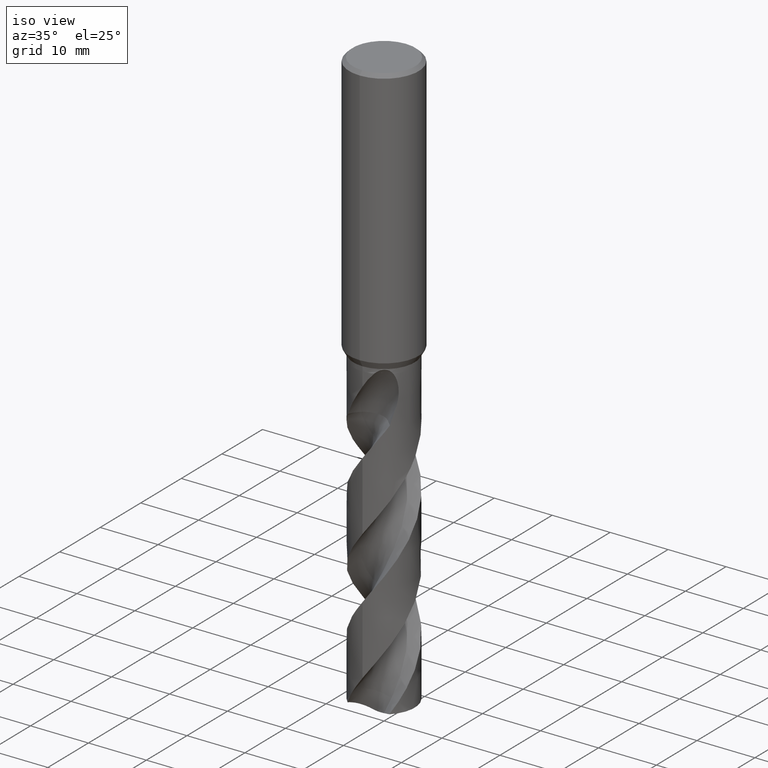
[diagram: clean part render]
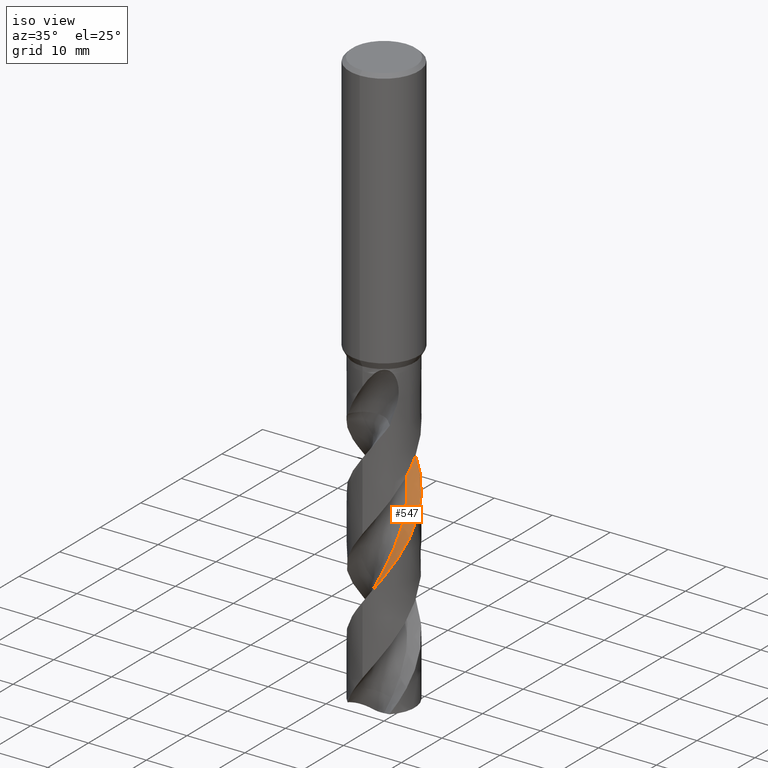
[diagram: same view with one face highlighted and labeled with its STEP entity id]
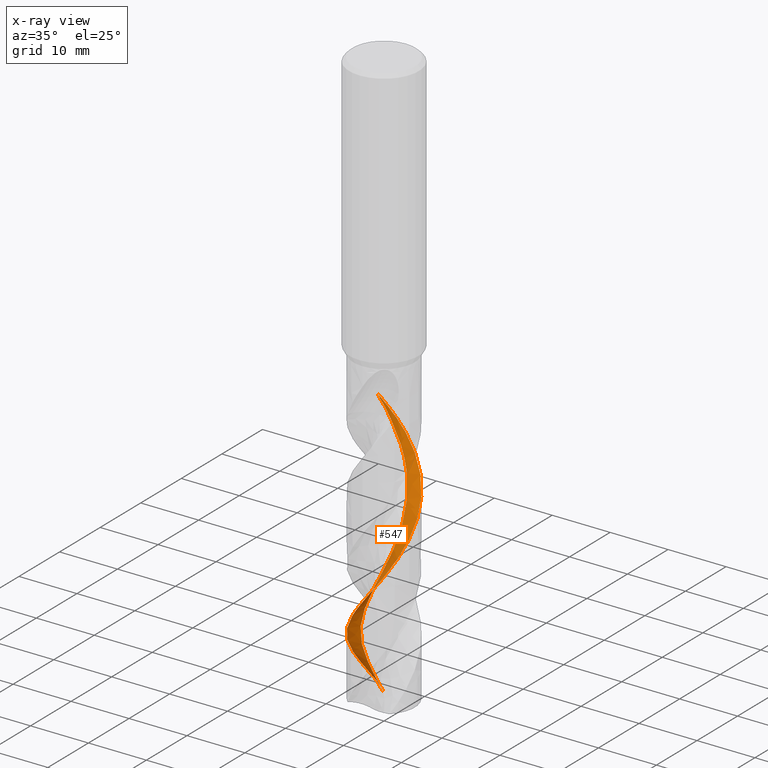
[diagram: x-ray of the same camera — body ghosted, the highlighted face saturated]
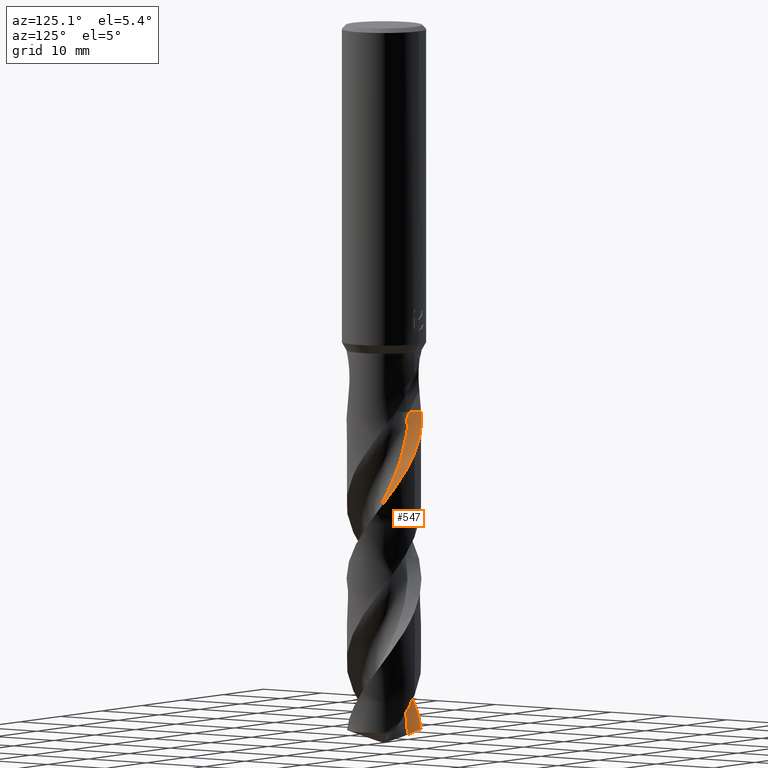
[diagram: same view with one face highlighted and labeled with its STEP entity id]
A machine part, iso view. The second image highlights one B-rep face of the part: STEP entity #547.
The next image is the same camera in x-ray: the body ghosted, the highlighted face saturated — about 0% of this face is hidden behind the body in this view.
A second angle (auxiliary view) of the same face is appended — the face is thin or edge-on in the first view.
In plain terms, the highlighted face is a freeform B-spline surface patch.
Its self-contained STEP definition (entity closure, byte-faithful):
#293=EDGE_CURVE('',#715,#335,#786,.T.);
#335=VERTEX_POINT('',#834);
#399=EDGE_CURVE('',#335,#473,#902,.T.);
#407=EDGE_CURVE('',#567,#423,#912,.T.);
#423=VERTEX_POINT('',#930);
#473=VERTEX_POINT('',#987);
#547=ADVANCED_FACE('',(#1064),#1065,.F.);
#567=VERTEX_POINT('',#1088);
#597=EDGE_CURVE('',#677,#567,#1120,.T.);
#669=EDGE_CURVE('',#715,#423,#1199,.T.);
#677=VERTEX_POINT('',#1207);
#703=EDGE_CURVE('',#473,#677,#1236,.T.);
#715=VERTEX_POINT('',#1248);
#786=LINE('',#1343,#1344);
#834=CARTESIAN_POINT('',(-3.6838498797612,3.81029529409031,-55.0186));
#902=B_SPLINE_CURVE_WITH_KNOTS('',3,(#1714,#1715,#1716,#1717,#1718,#1719,#1720,#1721,#1722,#1723,#1724,#1725,#1726,#1727,#1728,#1729,#1730,#1731,#1732,#1733,#1734,#1735,#1736,#1737,#1738,#1739,#1740,#1741,#1742,#1743,#1744,#1745,#1746,#1747,#1748,#1749,#1750,#1751,#1752,#1753,#1754,#1755,#1756,#1757,#1758,#1759,#1760,#1761,#1762,#1763,#1764,#1765,#1766,#1767,#1768,#1769,#1770,#1771,#1772,#1773,#1774,#1775,#1776,#1777,#1778,#1779,#1780,#1781,#1782,#1783,#1784,#1785,#1786,#1787,#1788,#1789,#1790,#1791,#1792,#1793,#1794,#1795,#1796,#1797,#1798,#1799,#1800,#1801,#1802,#1803,#1804,#1805,#1806,#1807),.UNSPECIFIED.,.F.,.F.,(4,2,2,2,2,2,2,2,2,2,2,2,2,2,2,2,2,2,2,2,2,2,2,2,2,2,2,2,2,2,2,2,2,2,2,2,2,2,2,2,2,2,2,2,2,2,4),(0.0,0.218040524987883,0.35169599727516,0.434204400201139,1.00837514030403,1.21070875702329,1.34069300444381,1.46311228601084,1.62771213083168,1.81087175589756,1.83459754694304,2.53011548671726,2.99050764217543,3.45321075083764,3.9479219089216,5.32326142600038,5.64325978559413,8.14920160785972,8.87782816751655,9.59953586343091,10.3276718494385,11.773052117009,14.349164963283,14.853316710442,16.6631985927309,19.5861346502642,20.8142374699089,23.7009847866445,24.4298833891527,27.321641904442,28.7783964446072,29.9223633900401,32.4186354075135,33.9202593819723,36.5243900367498,36.7648643725234,38.5507802371338,41.474677735265,43.9191805610887,43.977674276772,47.3019317307863,47.8345735931762,49.7431906027992,50.5449608981147,51.9399928077037,54.0450221288698,56.1608947485784),.UNSPECIFIED.);
#912=B_SPLINE_CURVE_WITH_KNOTS('',3,(#1821,#1822,#1823,#1824,#1825,#1826,#1827,#1828),.UNSPECIFIED.,.F.,.F.,(4,2,2,4),(0.0,2.35692417237146,3.51239813350228,4.65911612024447),.UNSPECIFIED.);
#930=CARTESIAN_POINT('',(-1.92643973439241,2.73193693311974,-100.783301920864));
#987=CARTESIAN_POINT('',(6.3105196094406E-011,5.29992549214172,-60.52892376531));
#1064=FACE_OUTER_BOUND('',#3326,.T.);
#1065=B_SPLINE_SURFACE_WITH_KNOTS('',3,3,((#3327,#3328,#3329,#3330,#3331,#3332,#3333,#3334,#3335,#3336,#3337,#3338,#3339,#3340,#3341,#3342,#3343,#3344,#3345,#3346,#3347,#3348,#3349,#3350,#3351,#3352,#3353,#3354,#3355,#3356,#3357,#3358,#3359,#3360,#3361,#3362,#3363,#3364,#3365,#3366,#3367,#3368,#3369,#3370,#3371,#3372,#3373,#3374,#3375,#3376,#3377,#3378,#3379,#3380,#3381,#3382),(#3383,#3384,#3385,#3386,#3387,#3388,#3389,#3390,#3391,#3392,#3393,#3394,#3395,#3396,#3397,#3398,#3399,#3400,#3401,#3402,#3403,#3404,#3405,#3406,#3407,#3408,#3409,#3410,#3411,#3412,#3413,#3414,#3415,#3416,#3417,#3418,#3419,#3420,#3421,#3422,#3423,#3424,#3425,#3426,#3427,#3428,#3429,#3430,#3431,#3432,#3433,#3434,#3435,#3436,#3437,#3438),(#3439,#3440,#3441,#3442,#3443,#3444,#3445,#3446,#3447,#3448,#3449,#3450,#3451,#3452,#3453,#3454,#3455,#3456,#3457,#3458,#3459,#3460,#3461,#3462,#3463,#3464,#3465,#3466,#3467,#3468,#3469,#3470,#3471,#3472,#3473,#3474,#3475,#3476,#3477,#3478,#3479,#3480,#3481,#3482,#3483,#3484,#3485,#3486,#3487,#3488,#3489,#3490,#3491,#3492,#3493,#3494),(#3495,#3496,#3497,#3498,#3499,#3500,#3501,#3502,#3503,#3504,#3505,#3506,#3507,#3508,#3509,#3510,#3511,#3512,#3513,#3514,#3515,#3516,#3517,#3518,#3519,#3520,#3521,#3522,#3523,#3524,#3525,#3526,#3527,#3528,#3529,#3530,#3531,#3532,#3533,#3534,#3535,#3536,#3537,#3538,#3539,#3540,#3541,#3542,#3543,#3544,#3545,#3546,#3547,#3548,#3549,#3550)),.UNSPECIFIED.,.F.,.F.,.F.,(4,4),(4,1,2,1,2,2,2,2,2,1,2,1,2,1,2,1,2,1,2,1,2,1,2,1,2,1,2,1,2,1,2,1,2,2,4),(2.31063811747395E-016,7.06666667),(0.0,1.05697191436646,2.11394382873293,3.17091574309939,4.22788765746586,6.34183148619878,8.45577531493171,10.5697191436646,12.6836629723976,14.7976068011305,16.9115506298634,19.0254944585963,21.1394382873293,23.2533821160622,25.3673259447951,27.4812697735281,29.595213602261,31.7091574309939,33.8231012597268,35.9370450884598,38.0509889171927,40.1649327459256,42.2788765746586,44.3928204033915,46.5067642321244,48.6207080608573,50.7346518895903,52.8485957183232,54.9625395470561,57.076483375789,59.190427204522,61.3043710332549,63.4183148619878,65.5322586907208,67.6462025194537),.UNSPECIFIED.);
#1088=CARTESIAN_POINT('',(-3.6322407459231,3.85964080759545,-100.070957758389));
#1120=B_SPLINE_CURVE_WITH_KNOTS('',3,(#4463,#4464,#4465,#4466,#4467,#4468,#4469,#4470,#4471,#4472,#4473,#4474,#4475,#4476,#4477,#4478,#4479,#4480,#4481,#4482,#4483,#4484,#4485,#4486,#4487,#4488,#4489,#4490,#4491,#4492,#4493,#4494,#4495,#4496,#4497,#4498,#4499,#4500,#4501,#4502,#4503,#4504,#4505,#4506,#4507,#4508,#4509,#4510,#4511,#4512,#4513,#4514,#4515,#4516,#4517,#4518,#4519,#4520,#4521,#4522,#4523,#4524,#4525,#4526,#4527,#4528,#4529,#4530,#4531,#4532,#4533,#4534,#4535,#4536,#4537,#4538,#4539,#4540,#4541,#4542,#4543,#4544,#4545,#4546,#4547,#4548,#4549,#4550,#4551,#4552,#4553,#4554,#4555,#4556),.UNSPECIFIED.,.F.,.F.,(4,2,2,2,2,2,2,2,2,2,2,2,2,2,2,2,2,2,2,2,2,2,2,2,2,2,2,2,2,2,2,2,2,2,2,2,2,2,2,2,2,2,2,2,2,2,4),(0.0,0.218040524987883,0.35169599727516,0.434204400201139,1.00837514030403,1.21070875702329,1.34069300444381,1.46311228601084,1.62771213083168,1.81087175589756,1.83459754694304,2.53011548671726,2.99050764217543,3.45321075083764,3.9479219089216,5.32326142600038,5.64325978559413,8.14920160785972,8.87782816751655,9.59953586343091,10.3276718494385,11.773052117009,14.349164963283,14.853316710442,16.6631985927309,19.5861346502642,20.8142374699089,23.7009847866445,24.4298833891527,27.321641904442,28.7783964446072,29.9223633900401,32.4186354075135,33.9202593819723,36.5243900367498,36.7648643725234,38.5507802371338,41.474677735265,43.9191805610887,43.977674276772,47.3019317307863,47.8345735931762,49.7431906027992,50.5449608981147,51.9399928077037,54.0450221288698,56.1608947485784),.UNSPECIFIED.);
#1199=B_SPLINE_CURVE_WITH_KNOTS('',3,(#4809,#4810,#4811,#4812,#4813,#4814,#4815,#4816,#4817,#4818,#4819,#4820,#4821,#4822,#4823,#4824,#4825,#4826,#4827,#4828,#4829,#4830,#4831,#4832,#4833,#4834,#4835,#4836,#4837,#4838,#4839,#4840,#4841,#4842,#4843,#4844,#4845,#4846,#4847,#4848,#4849,#4850,#4851,#4852,#4853,#4854,#4855,#4856,#4857,#4858,#4859,#4860,#4861,#4862,#4863,#4864),.UNSPECIFIED.,.F.,.F.,(4,1,2,1,2,2,2,2,2,1,2,1,2,1,2,1,2,1,2,1,2,1,2,1,2,1,2,1,2,1,2,1,2,2,4),(0.0,1.05697191436646,2.11394382873293,3.17091574309939,4.22788765746586,6.34183148619878,8.45577531493171,10.5697191436646,12.6836629723976,14.7976068011305,16.9115506298634,19.0254944585963,21.1394382873293,23.2533821160622,25.3673259447951,27.4812697735281,29.595213602261,31.7091574309939,33.8231012597268,35.9370450884598,38.0509889171927,40.1649327459256,42.2788765746586,44.3928204033915,46.5067642321244,48.6207080608573,50.7346518895903,52.8485957183232,54.9625395470561,57.076483375789,59.190427204522,61.3043710332549,63.4183148619878,65.5322586907208,67.6462025194537),.UNSPECIFIED.);
#1207=CARTESIAN_POINT('',(9.21365341567189E-013,-5.29996783547603,-83.0009368325365));
#1236=B_SPLINE_CURVE_WITH_KNOTS('',3,(#5022,#5023,#5024,#5025,#5026,#5027,#5028,#5029,#5030,#5031,#5032,#5033,#5034,#5035,#5036,#5037,#5038,#5039,#5040,#5041,#5042,#5043,#5044,#5045,#5046,#5047,#5048,#5049,#5050,#5051,#5052,#5053,#5054,#5055,#5056,#5057,#5058,#5059,#5060,#5061,#5062,#5063,#5064,#5065,#5066,#5067,#5068,#5069,#5070,#5071,#5072,#5073,#5074,#5075,#5076,#5077,#5078,#5079,#5080,#5081,#5082,#5083,#5084,#5085,#5086,#5087,#5088,#5089,#5090,#5091,#5092,#5093,#5094,#5095,#5096,#5097,#5098,#5099,#5100,#5101,#5102,#5103,#5104,#5105,#5106,#5107,#5108,#5109,#5110,#5111,#5112,#5113,#5114,#5115),.UNSPECIFIED.,.F.,.F.,(4,2,2,2,2,2,2,2,2,2,2,2,2,2,2,2,2,2,2,2,2,2,2,2,2,2,2,2,2,2,2,2,2,2,2,2,2,2,2,2,2,2,2,2,2,2,4),(0.0,0.218040524987883,0.35169599727516,0.434204400201139,1.00837514030403,1.21070875702329,1.34069300444381,1.46311228601084,1.62771213083168,1.81087175589756,1.83459754694304,2.53011548671726,2.99050764217543,3.45321075083764,3.9479219089216,5.32326142600038,5.64325978559413,8.14920160785972,8.87782816751655,9.59953586343091,10.3276718494385,11.773052117009,14.349164963283,14.853316710442,16.6631985927309,19.5861346502642,20.8142374699089,23.7009847866445,24.4298833891527,27.321641904442,28.7783964446072,29.9223633900401,32.4186354075135,33.9202593819723,36.5243900367498,36.7648643725234,38.5507802371338,41.474677735265,43.9191805610887,43.977674276772,47.3019317307863,47.8345735931762,49.7431906027992,50.5449608981147,51.9399928077037,54.0450221288698,56.1608947485784),.UNSPECIFIED.);
#1248=CARTESIAN_POINT('',(-2.49844395776474,2.62488937223527,-55.0186));
#1343=CARTESIAN_POINT('',(-2.49844395783545,2.62488937216456,-55.0186));
#1344=VECTOR('',#5265,1.0);
#1714=CARTESIAN_POINT('',(-3.6838498797612,3.81029529409031,-55.0186));
#1715=CARTESIAN_POINT('',(-3.65412128161096,3.83903749939567,-55.0783704268317));
#1716=CARTESIAN_POINT('',(-3.62397815595265,3.86750863752062,-55.1380930447628));
#1717=CARTESIAN_POINT('',(-3.57454685157391,3.91310265667126,-55.2342899991591));
#1718=CARTESIAN_POINT('',(-3.55559450450037,3.93033260391565,-55.2707752403739));
#1719=CARTESIAN_POINT('',(-3.52461328984697,3.95808787265097,-55.3297268343548));
#1720=CARTESIAN_POINT('',(-3.51271935000354,3.96864761089923,-55.3521980042881));
#1721=CARTESIAN_POINT('',(-3.41743516534584,4.05247584359199,-55.5309011595253));
#1722=CARTESIAN_POINT('',(-3.33203894740819,4.12306464516564,-55.6829795631752));
#1723=CARTESIAN_POINT('',(-3.20989975733148,4.21749682485048,-55.8902838914724));
#1724=CARTESIAN_POINT('',(-3.17769957871174,4.24181425278105,-55.9440624691203));
#1725=CARTESIAN_POINT('',(-3.12409639430935,4.28133398324858,-56.0323460378424));
#1726=CARTESIAN_POINT('',(-3.10298309488847,4.29666155481108,-56.0668121668238));
#1727=CARTESIAN_POINT('',(-3.06168119046604,4.32618041516466,-56.1337157109812));
#1728=CARTESIAN_POINT('',(-3.04153043628231,4.34037147393925,-56.1661218487548));
#1729=CARTESIAN_POINT('',(-2.99399957362023,4.37335018520966,-56.2420968395532));
#1730=CARTESIAN_POINT('',(-2.96655602767485,4.3920123701327,-56.2856080477091));
#1731=CARTESIAN_POINT('',(-2.90819517354403,4.430901994774,-56.3776029938153));
#1732=CARTESIAN_POINT('',(-2.87728438217866,4.45103581388676,-56.4260166041025));
#1733=CARTESIAN_POINT('',(-2.84218492170503,4.47338093722552,-56.4808129547641));
#1734=CARTESIAN_POINT('',(-2.83819334306826,4.4759145333421,-56.4870425222275));
#1735=CARTESIAN_POINT('',(-2.71569382211619,4.5534374565138,-56.6782162453421));
#1736=CARTESIAN_POINT('',(-2.59516272991848,4.62312617931698,-56.8655560712037));
#1737=CARTESIAN_POINT('',(-2.39240107936697,4.73010548051938,-57.1761371789638));
#1738=CARTESIAN_POINT('',(-2.31063786358101,4.77057676298781,-57.3002061532725));
#1739=CARTESIAN_POINT('',(-2.14485353944083,4.84738504977752,-57.5486483216884));
#1740=CARTESIAN_POINT('',(-2.06064628979083,4.88378221441841,-57.6732864657397));
#1741=CARTESIAN_POINT('',(-1.88426401513503,4.95462955247291,-57.9306362100101));
#1742=CARTESIAN_POINT('',(-1.79232955400505,4.98862423299845,-58.0626313024003));
#1743=CARTESIAN_POINT('',(-1.44048923722168,5.10771884445575,-58.5628706349024));
#1744=CARTESIAN_POINT('',(-1.17555877364497,5.17509760658795,-58.9288569630509));
#1745=CARTESIAN_POINT('',(-0.844300195092571,5.23262571598332,-59.3828031963343));
#1746=CARTESIAN_POINT('',(-0.781633894941649,5.24235167958048,-59.4685464628528));
#1747=CARTESIAN_POINT('',(-0.227325019856081,5.31823924716515,-60.2251418522728));
#1748=CARTESIAN_POINT('',(0.271733629390173,5.31623242525901,-60.8917187358792));
#1749=CARTESIAN_POINT('',(0.906472846695976,5.22383183771315,-61.7571081947109));
#1750=CARTESIAN_POINT('',(1.04851992231513,5.19718262977385,-61.9519832722461));
#1751=CARTESIAN_POINT('',(1.32869494146467,5.13266835925989,-62.3400867215585));
#1752=CARTESIAN_POINT('',(1.46675079083213,5.09493449280441,-62.5332089844875));
#1753=CARTESIAN_POINT('',(1.74067574923173,5.00800731280011,-62.9211946825181));
#1754=CARTESIAN_POINT('',(1.87643044920925,4.95874155009098,-63.1159470000314));
#1755=CARTESIAN_POINT('',(2.27522793968092,4.79528487544571,-63.6974697692906));
#1756=CARTESIAN_POINT('',(2.53106019871061,4.66530045664442,-64.0833235783013));
#1757=CARTESIAN_POINT('',(3.20990144939106,4.24810066562416,-65.1598096672133));
#1758=CARTESIAN_POINT('',(3.60416003036703,3.91925134536289,-65.8452126356443));
#1759=CARTESIAN_POINT('',(4.01218227494825,3.46435123371981,-66.6690986383288));
#1760=CARTESIAN_POINT('',(4.07681309500062,3.3880556524897,-66.8038738951446));
#1761=CARTESIAN_POINT('',(4.36333715355754,3.02975130017823,-67.423171454676));
#1762=CARTESIAN_POINT('',(4.55844049975234,2.72741365475783,-67.9074222818332));
#1763=CARTESIAN_POINT('',(4.98479558676873,1.8913353249495,-69.1742165232851));
#1764=CARTESIAN_POINT('',(5.1615618004305,1.33538377830307,-69.9498884829854));
#1765=CARTESIAN_POINT('',(5.27986300243588,0.521255604852909,-71.0612701553529));
#1766=CARTESIAN_POINT('',(5.29824752451176,0.278143870420483,-71.3896327412368));
#1767=CARTESIAN_POINT('',(5.30356403497331,-0.538195169406197,-72.4906953358548));
#1768=CARTESIAN_POINT('',(5.21443232481526,-1.10756182636354,-73.2586521365238));
#1769=CARTESIAN_POINT('',(4.99108749797252,-1.78868985276479,-74.2265548547194));
#1770=CARTESIAN_POINT('',(4.94044981592061,-1.92415028717836,-74.4215547461009));
#1771=CARTESIAN_POINT('',(4.66160958663798,-2.58612279742515,-75.3904266012673));
#1772=CARTESIAN_POINT('',(4.3545855823522,-3.07502396677161,-76.1595142672544));
#1773=CARTESIAN_POINT('',(3.78445259131558,-3.72167587675489,-77.3236520867618));
#1774=CARTESIAN_POINT('',(3.57597632360671,-3.92243880155092,-77.7126658625158));
#1775=CARTESIAN_POINT('',(3.17619078925733,-4.24887284624929,-78.4084767976948));
#1776=CARTESIAN_POINT('',(2.99141958616696,-4.3809126662265,-78.7141242220756));
#1777=CARTESIAN_POINT('',(2.37870606133381,-4.76194950609144,-79.6888478096639));
#1778=CARTESIAN_POINT('',(1.92369561171159,-4.96331385514733,-80.354278035046));
#1779=CARTESIAN_POINT('',(1.16033921447257,-5.17996819964347,-81.4240322167886));
#1780=CARTESIAN_POINT('',(0.867473733846598,-5.23695536853886,-81.8252652589077));
#1781=CARTESIAN_POINT('',(0.0584695308696583,-5.32471891825473,-82.9247713964071));
#1782=CARTESIAN_POINT('',(-0.46035451725619,-5.30516578431025,-83.6175531238152));
#1783=CARTESIAN_POINT('',(-1.01532903220524,-5.20202562997207,-84.3787142318914));
#1784=CARTESIAN_POINT('',(-1.0621100532062,-5.19267616451496,-84.4430476939091));
#1785=CARTESIAN_POINT('',(-1.45519826705919,-5.10858202380539,-84.9854916685916));
#1786=CARTESIAN_POINT('',(-1.79336351151007,-4.999905507549,-85.4635526459709));
#1787=CARTESIAN_POINT('',(-2.64976505327986,-4.62653970094231,-86.7246752570066));
#1788=CARTESIAN_POINT('',(-3.13965573865936,-4.309096114765,-87.500701550934));
#1789=CARTESIAN_POINT('',(-3.92658548156943,-3.59256956445525,-88.9385748603525));
#1790=CARTESIAN_POINT('',(-4.23866346922455,-3.21852207556811,-89.5891042508935));
#1791=CARTESIAN_POINT('',(-4.50175639816404,-2.79716429955417,-90.2589888396923));
#1792=CARTESIAN_POINT('',(-4.50787224768002,-2.78729741873268,-90.2746441815341));
#1793=CARTESIAN_POINT('',(-4.8596903902046,-2.215512063793,-91.1801767629072));
#1794=CARTESIAN_POINT('',(-5.09768143767724,-1.59351683243103,-92.0654016145258));
#1795=CARTESIAN_POINT('',(-5.23409431898871,-0.839825045274235,-93.0980900807639));
#1796=CARTESIAN_POINT('',(-5.24980557853572,-0.735241943160905,-93.2406205820733));
#1797=CARTESIAN_POINT('',(-5.30742681494894,-0.254154574365361,-93.8946101309585));
#1798=CARTESIAN_POINT('',(-5.31203115248227,0.125836721371992,-94.4055294874262));
#1799=CARTESIAN_POINT('',(-5.26094610985322,0.66158297071652,-95.1316075716188));
#1800=CARTESIAN_POINT('',(-5.23869758121612,0.819344383616303,-95.3462003732204));
#1801=CARTESIAN_POINT('',(-5.15833664824134,1.24831532301478,-95.9345155544439));
#1802=CARTESIAN_POINT('',(-5.08606657087964,1.51605554185304,-96.3072294732073));
#1803=CARTESIAN_POINT('',(-4.85332223192194,2.17015137477586,-97.2455676199351));
#1804=CARTESIAN_POINT('',(-4.66723177878282,2.5459282880948,-97.8085869247788));
#1805=CARTESIAN_POINT('',(-4.20907034161767,3.24813157810845,-98.9394473828054));
#1806=CARTESIAN_POINT('',(-3.93833555694997,3.57157884493713,-99.5040533227798));
#1807=CARTESIAN_POINT('',(-3.63224074592311,3.85964080759543,-100.070957758389));
#1821=CARTESIAN_POINT('',(-5.81383459137618,4.73067937447868,-99.2719222995232));
#1822=CARTESIAN_POINT('',(-5.0966174349644,4.52851823604252,-99.5208456202025));
#1823=CARTESIAN_POINT('',(-4.40147117975703,4.25671956387159,-99.7731145686999));
#1824=CARTESIAN_POINT('',(-3.41750805425349,3.74980501739249,-100.153904132973));
#1825=CARTESIAN_POINT('',(-3.10261397134985,3.56682589169144,-100.279803215787));
#1826=CARTESIAN_POINT('',(-2.49592414707923,3.17059685201907,-100.53184051643));
#1827=CARTESIAN_POINT('',(-2.20512220648295,2.95819958724898,-100.657545257233));
#1828=CARTESIAN_POINT('',(-1.92643973446543,2.73193693305451,-100.783301920868));
#3326=EDGE_LOOP('',(#5593,#5594,#5595,#5596,#5597,#5598));
#3327=CARTESIAN_POINT('',(-2.49844395783545,2.62488937216456,-55.0186));
#3328=CARTESIAN_POINT('',(-2.24909412560232,2.61260812428297,-55.2629746954904));
#3329=CARTESIAN_POINT('',(-1.85197539752587,2.63855177385447,-55.7495123488136));
#3330=CARTESIAN_POINT('',(-1.65737290749432,2.75698953642696,-56.2356067189668));
#3331=CARTESIAN_POINT('',(-1.54716909616829,2.93395254404715,-56.7281457115416));
#3332=CARTESIAN_POINT('',(-1.39410674556367,3.08169337270698,-57.2216184562587));
#3333=CARTESIAN_POINT('',(-1.17713443232074,3.16259789349587,-57.7120377860694));
#3334=CARTESIAN_POINT('',(-0.821342101647347,3.23587051557121,-58.4426566049961));
#3335=CARTESIAN_POINT('',(-0.593323598996969,3.27650315669591,-58.9303939849536));
#3336=CARTESIAN_POINT('',(-0.150399726755623,3.34626563953682,-59.9116290635929));
#3337=CARTESIAN_POINT('',(0.080349490235978,3.34770650573517,-60.4017366809573));
#3338=CARTESIAN_POINT('',(0.536037150415574,3.30317668903117,-61.3796432719813));
#3339=CARTESIAN_POINT('',(0.761773095596525,3.2556443264513,-61.8688991221384));
#3340=CARTESIAN_POINT('',(1.19812863064167,3.12418302266454,-62.8482595001352));
#3341=CARTESIAN_POINT('',(1.40952574908957,3.03300429818257,-63.3377062797921));
#3342=CARTESIAN_POINT('',(1.81026422216882,2.82017229131363,-64.3164743457747));
#3343=CARTESIAN_POINT('',(2.18678085487371,2.55102789137899,-65.2956922261115));
#3344=CARTESIAN_POINT('',(2.50060945518253,2.21407861713422,-66.2740491439934));
#3345=CARTESIAN_POINT('',(2.78498530440847,1.86250987763143,-67.253068966018));
#3346=CARTESIAN_POINT('',(3.02417813594791,1.46723618420797,-68.2325770719528));
#3347=CARTESIAN_POINT('',(3.17726727300067,1.03266637191089,-69.211009889743));
#3348=CARTESIAN_POINT('',(3.29700803706295,0.596235146304928,-70.1898897171669));
#3349=CARTESIAN_POINT('',(3.35820065261483,0.138152896046186,-71.1692787629735));
#3350=CARTESIAN_POINT('',(3.3252448332268,-0.321315977930028,-72.1476951131156));
#3351=CARTESIAN_POINT('',(3.26098907800257,-0.769217325861865,-73.1266257377308));
#3352=CARTESIAN_POINT('',(3.13430357539791,-1.21365487509881,-74.1060524984935));
#3353=CARTESIAN_POINT('',(2.92065748871978,-1.62179467895812,-75.0844716376792));
#3354=CARTESIAN_POINT('',(2.68296332723709,-2.0068320981055,-76.0633875885929));
#3355=CARTESIAN_POINT('',(2.38943128196172,-2.3637756776798,-77.0428045483006));
#3356=CARTESIAN_POINT('',(2.03065269284733,-2.65273098821297,-78.0212236318041));
#3357=CARTESIAN_POINT('',(1.65903000684998,-2.91089782265987,-79.0001432910726));
#3358=CARTESIAN_POINT('',(1.24742102214934,-3.12101873463454,-79.9795625544364));
#3359=CARTESIAN_POINT('',(0.803128161938752,-3.24276411221196,-80.9579817916448));
#3360=CARTESIAN_POINT('',(0.359350228112736,-3.33115824093725,-81.9369010945775));
#3361=CARTESIAN_POINT('',(-0.101916691884659,-3.35953739771709,-82.9163197382685));
#3362=CARTESIAN_POINT('',(-0.557879733343997,-3.29383656858783,-83.8947377001453));
#3363=CARTESIAN_POINT('',(-1.00005879498875,-3.19776151186963,-84.8736554194694));
#3364=CARTESIAN_POINT('',(-1.43431878514513,-3.03968477813327,-85.8530751453767));
#3365=CARTESIAN_POINT('',(-1.82616841109774,-2.79746152666559,-86.8314981558419));
#3366=CARTESIAN_POINT('',(-2.19325595624842,-2.53288127891702,-87.8104218176662));
#3367=CARTESIAN_POINT('',(-2.52833339157441,-2.21460219890493,-88.7898361534051));
#3368=CARTESIAN_POINT('',(-2.7909482749106,-1.83613058463386,-89.7682394548011));
#3369=CARTESIAN_POINT('',(-3.02195907666686,-1.44707714002392,-90.7471420923674));
#3370=CARTESIAN_POINT('',(-3.20217894455262,-1.02154484853793,-91.7265780615224));
#3371=CARTESIAN_POINT('',(-3.29178280973746,-0.569593512362207,-92.7050442122957));
#3372=CARTESIAN_POINT('',(-3.34804220877312,-0.120483189309063,-93.6840029843786));
#3373=CARTESIAN_POINT('',(-3.3434036697101,0.341641349322628,-94.6633525660449));
#3374=CARTESIAN_POINT('',(-3.24604001892256,0.791540080448149,-95.6416511674214));
#3375=CARTESIAN_POINT('',(-3.11974269554969,1.22555923582651,-96.6205161839066));
#3376=CARTESIAN_POINT('',(-2.93086695738059,1.64748739964883,-97.6001928707425));
#3377=CARTESIAN_POINT('',(-2.65831045897395,2.02064324800837,-98.5788888566835));
#3378=CARTESIAN_POINT('',(-2.36441366145388,2.3668694188022,-99.5577838118779));
#3379=CARTESIAN_POINT('',(-2.19635926627573,2.52330707134756,-100.046969837296));
#3380=CARTESIAN_POINT('',(-1.8406939224426,2.80322102805865,-101.024877174675));
#3381=CARTESIAN_POINT('',(-1.63708311257554,2.91792888996719,-101.514309898947));
#3382=CARTESIAN_POINT('',(-1.4200457881462,3.00680205078309,-102.003220679977));
#3383=CARTESIAN_POINT('',(-4.16407326539367,4.2905186797437,-55.0185999999974));
#3384=CARTESIAN_POINT('',(-3.91330323201493,4.27965763300772,-55.2630159555486));
#3385=CARTESIAN_POINT('',(-3.47868275655495,4.34425688204037,-55.7473292134789));
#3386=CARTESIAN_POINT('',(-3.1683410493458,4.56702652175723,-56.2304401957089));
#3387=CARTESIAN_POINT('',(-2.89413706534904,4.86913971530416,-56.725242281426));
#3388=CARTESIAN_POINT('',(-2.58191272877965,5.12145748242672,-57.221866045585));
#3389=CARTESIAN_POINT('',(-2.22132220034227,5.27537877278048,-57.7131309493974));
#3390=CARTESIAN_POINT('',(-1.66254164845184,5.44112265438577,-58.4409954243106));
#3391=CARTESIAN_POINT('',(-1.28606152549619,5.53397271858731,-58.9273371758001));
#3392=CARTESIAN_POINT('',(-0.520512651679534,5.67844720202789,-59.910379367705));
#3393=CARTESIAN_POINT('',(-0.129177328794681,5.69942624767659,-60.4010087825051));
#3394=CARTESIAN_POINT('',(0.647949460949507,5.6615561254296,-61.378121647161));
#3395=CARTESIAN_POINT('',(1.03378224035344,5.60102432318144,-61.8672141910847));
#3396=CARTESIAN_POINT('',(1.78811953668926,5.4103810182014,-62.8469218980793));
#3397=CARTESIAN_POINT('',(2.15428574415139,5.27365096863016,-63.3363594428647));
#3398=CARTESIAN_POINT('',(2.85628435760043,4.93700958960094,-64.3150089806155));
#3399=CARTESIAN_POINT('',(3.51532623551665,4.51563990703027,-65.294463700049));
#3400=CARTESIAN_POINT('',(4.07629507066891,3.97266639928173,-66.2723757059631));
#3401=CARTESIAN_POINT('',(4.58867678000831,3.38635529773487,-67.2514757261943));
#3402=CARTESIAN_POINT('',(5.02671638694858,2.73797024964974,-68.2314496941908));
#3403=CARTESIAN_POINT('',(5.32405967916694,2.01584783861125,-69.2094984056432));
#3404=CARTESIAN_POINT('',(5.55902256293396,1.27346930024505,-70.1883475690469));
#3405=CARTESIAN_POINT('',(5.70148403837235,0.504110657368355,-71.1681086083009));
#3406=CARTESIAN_POINT('',(5.68604407081443,-0.276616954872367,-72.1461276419767));
#3407=CARTESIAN_POINT('',(5.60532674914803,-1.05107625981237,-73.125067701675));
#3408=CARTESIAN_POINT('',(5.4289144506041,-1.81337172694333,-74.1048962315849));
#3409=CARTESIAN_POINT('',(5.10311085522983,-2.52305385404226,-75.0829204450264));
#3410=CARTESIAN_POINT('',(4.71998712344416,-3.20094180602843,-76.0618340371692));
#3411=CARTESIAN_POINT('',(4.25399412176428,-3.82948611425937,-77.0416453495413));
#3412=CARTESIAN_POINT('',(3.67202316375354,-4.35016275273052,-78.019668919903));
#3413=CARTESIAN_POINT('',(3.05017543914454,-4.81879621744762,-78.9985897585568));
#3414=CARTESIAN_POINT('',(2.37203810102038,-5.20911326991785,-79.9784044108791));
#3415=CARTESIAN_POINT('',(1.63061552628056,-5.45424215883012,-80.956429188298));
#3416=CARTESIAN_POINT('',(0.873402361846433,-5.63574375179226,-81.9353484912307));
#3417=CARTESIAN_POINT('',(0.0958341766824843,-5.72296629768971,-82.9151631120038));
#3418=CARTESIAN_POINT('',(-0.681811154926981,-5.65180429860857,-83.893184939425));
#3419=CARTESIAN_POINT('',(-1.44853879571988,-5.51599987591418,-84.8721014793637));
#3420=CARTESIAN_POINT('',(-2.19630184933043,-5.28563327722934,-85.8519174326916));
#3421=CARTESIAN_POINT('',(-2.88092314770506,-4.9100105825372,-86.8299470927489));
#3422=CARTESIAN_POINT('',(-3.52973107091266,-4.47946736998082,-87.8088778308856));
#3423=CARTESIAN_POINT('',(-4.12340328723864,-3.96978150875527,-88.7886850984154));
#3424=CARTESIAN_POINT('',(-4.60122295206155,-3.35213882664268,-89.7666801871679));
#3425=CARTESIAN_POINT('',(-5.02431258645588,-2.69845474056191,-90.7455663133386));
#3426=CARTESIAN_POINT('',(-5.36524056606841,-1.99419905092434,-91.7254023539536));
#3427=CARTESIAN_POINT('',(-5.55667776086785,-1.23712860040529,-92.7035135494328));
#3428=CARTESIAN_POINT('',(-5.68341914737495,-0.468850349204403,-93.6825194969313));
#3429=CARTESIAN_POINT('',(-5.71493306089175,0.312962177258231,-94.6622408828901));
#3430=CARTESIAN_POINT('',(-5.58914011632561,1.08366004515344,-95.6400389030562));
#3431=CARTESIAN_POINT('',(-5.39989265543501,1.83904167004598,-96.6187930573146));
#3432=CARTESIAN_POINT('',(-5.11638037373723,2.56841862957822,-97.5989476566001));
#3433=CARTESIAN_POINT('',(-4.69045451572322,3.22291762669467,-98.5774480450695));
#3434=CARTESIAN_POINT('',(-4.21212189259188,3.83691735360336,-99.5564680151154));
#3435=CARTESIAN_POINT('',(-3.93902047596083,4.11654153098382,-100.04558896656));
#3436=CARTESIAN_POINT('',(-3.34705494940521,4.62149843685967,-101.023225045299));
#3437=CARTESIAN_POINT('',(-3.01793330101802,4.83256237571284,-101.513013514216));
#3438=CARTESIAN_POINT('',(-2.66976918148111,5.00350719681501,-102.001813433019));
#3439=CARTESIAN_POINT('',(-5.82970257301918,5.95614798732737,-55.0186000000026));
#3440=CARTESIAN_POINT('',(-5.57751231340066,5.94670716580321,-55.2630571784816));
#3441=CARTESIAN_POINT('',(-5.10539010187114,6.04996192121238,-55.7451460820752));
#3442=CARTESIAN_POINT('',(-4.67930924376206,6.37706362103835,-56.2252737017186));
#3443=CARTESIAN_POINT('',(-4.24110498203505,6.80432677263637,-56.7223388220479));
#3444=CARTESIAN_POINT('',(-3.76971886704173,7.16122155782295,-57.2221136657648));
#3445=CARTESIAN_POINT('',(-3.26550971093981,7.38815983458453,-57.7142240803443));
#3446=CARTESIAN_POINT('',(-2.50374171010938,7.64637442822562,-58.439334308373));
#3447=CARTESIAN_POINT('',(-1.97879929177077,7.79144212561275,-58.9242803399916));
#3448=CARTESIAN_POINT('',(-0.89062573687715,8.01062891946209,-59.90912969845));
#3449=CARTESIAN_POINT('',(-0.338704284760827,8.05114607045608,-60.40028100353));
#3450=CARTESIAN_POINT('',(0.759861908407279,8.0199354809105,-61.376599902964));
#3451=CARTESIAN_POINT('',(1.30579153872937,7.94640409391593,-61.8655291398378));
#3452=CARTESIAN_POINT('',(2.37811028902786,7.6965792398891,-62.8455844162336));
#3453=CARTESIAN_POINT('',(2.89904634869927,7.51429759990779,-63.3350125473418));
#3454=CARTESIAN_POINT('',(3.90230388359891,7.05384692708479,-64.3135436739956));
#3455=CARTESIAN_POINT('',(4.84387198088104,6.48025210778985,-65.2932348583032));
#3456=CARTESIAN_POINT('',(5.65198056625218,5.73125377203937,-66.2707028409194));
#3457=CARTESIAN_POINT('',(6.39236837547216,4.91020112726436,-67.2498819134785));
#3458=CARTESIAN_POINT('',(7.02925462861979,4.00870407090586,-68.230322585252));
#3459=CARTESIAN_POINT('',(7.47085198425039,2.99902938444692,-69.2079869569834));
#3460=CARTESIAN_POINT('',(7.82103718990854,1.95070337522624,-70.1868053855121));
#3461=CARTESIAN_POINT('',(8.04476759258132,0.870068622793132,-71.1669381704064));
#3462=CARTESIAN_POINT('',(8.04684287044865,-0.231918260813769,-72.1445607719693));
#3463=CARTESIAN_POINT('',(7.94966485828652,-1.33293486473963,-73.1235090644675));
#3464=CARTESIAN_POINT('',(7.72352511408136,-2.41308853850747,-74.1037404180554));
#3465=CARTESIAN_POINT('',(7.28556420730582,-3.42431343873295,-75.0813689462769));
#3466=CARTESIAN_POINT('',(6.75701093412946,-4.39505110437881,-76.0602807920003));
#3467=CARTESIAN_POINT('',(6.1185569939829,-5.29519707357108,-77.0404856719969));
#3468=CARTESIAN_POINT('',(5.31339355552232,-6.04759388132761,-78.0181148595871));
#3469=CARTESIAN_POINT('',(4.44132095070453,-6.72669524814279,-78.9970355744166));
#3470=CARTESIAN_POINT('',(3.49665514490244,-7.29720740407834,-79.9772470228254));
#3471=CARTESIAN_POINT('',(2.45810288137416,-7.66572037186755,-80.9548757255304));
#3472=CARTESIAN_POINT('',(1.38745450489877,-7.94032909615061,-81.9337967471558));
#3473=CARTESIAN_POINT('',(0.293584984863137,-8.08639539853174,-82.9140061266096));
#3474=CARTESIAN_POINT('',(-0.805742465000322,-8.00977179353809,-83.8916320377327));
#3475=CARTESIAN_POINT('',(-1.89701890795198,-7.83423847505555,-84.8705476804039));
#3476=CARTESIAN_POINT('',(-2.95828492158265,-7.53158172381877,-85.8507587782064));
#3477=CARTESIAN_POINT('',(-3.93567775657452,-7.02255950855245,-86.8283977721595));
#3478=CARTESIAN_POINT('',(-4.86620631328914,-6.42605359096788,-87.8073321014134));
#3479=CARTESIAN_POINT('',(-5.71847333178229,-5.72496078236624,-88.7875344302809));
#3480=CARTESIAN_POINT('',(-6.41149720366504,-4.86814701131647,-89.7651218894848));
#3481=CARTESIAN_POINT('',(-7.0266665218501,-3.94983239850565,-90.7439895641823));
#3482=CARTESIAN_POINT('',(-7.52830177771921,-2.96685337568329,-91.7242278208771));
#3483=CARTESIAN_POINT('',(-7.82157310614688,-1.90466338620531,-92.7019815071276));
#3484=CARTESIAN_POINT('',(-8.01879569191182,-0.817217811323329,-93.6810373886686));
#3485=CARTESIAN_POINT('',(-8.08646258776711,0.284283203166485,-94.6611289912819));
#3486=CARTESIAN_POINT('',(-7.93224033645359,1.37577991596179,-95.6384256752391));
#3487=CARTESIAN_POINT('',(-7.68004249265736,2.45252419815227,-96.6170708941753));
#3488=CARTESIAN_POINT('',(-7.30189379921743,3.48934970603698,-97.5977022278851));
#3489=CARTESIAN_POINT('',(-6.72259867684575,4.42519221837718,-98.5760066987605));
#3490=CARTESIAN_POINT('',(-6.05983001943352,5.30696507546255,-99.5551527527928));
#3491=CARTESIAN_POINT('',(-5.68168170144855,5.70977633848766,-100.044207938613));
#3492=CARTESIAN_POINT('',(-4.85341596062248,6.43977549789815,-101.021573072908));
#3493=CARTESIAN_POINT('',(-4.39878347646539,6.74719482855236,-101.511719189858));
#3494=CARTESIAN_POINT('',(-3.91949257486844,7.0002123429343,-102.000406185681));
#3495=CARTESIAN_POINT('',(-7.4953318805774,7.62177729490652,-55.0186));
#3496=CARTESIAN_POINT('',(-7.24172141981328,7.61375667452796,-55.2630984938235));
#3497=CARTESIAN_POINT('',(-6.73209742404442,7.7556668819751,-55.7429629375265));
#3498=CARTESIAN_POINT('',(-6.19027745932512,8.18710090121496,-56.2201071416048));
#3499=CARTESIAN_POINT('',(-5.58807287750421,8.73951364904704,-56.719435428788));
#3500=CARTESIAN_POINT('',(-4.95752488711351,9.20098570439848,-57.2223612550911));
#3501=CARTESIAN_POINT('',(-4.30969747896134,9.5009409350039,-57.7153172068165));
#3502=CARTESIAN_POINT('',(-3.34494125691387,9.85162612477066,-58.4376732013992));
#3503=CARTESIAN_POINT('',(-2.67153707084682,10.0489118349273,-58.921223383415));
#3504=CARTESIAN_POINT('',(-1.26073880922423,10.34281033453,-59.9078801499852));
#3505=CARTESIAN_POINT('',(-0.548231398637834,10.4028656649743,-60.3995531050778));
#3506=CARTESIAN_POINT('',(0.87177451378756,10.3783150647321,-61.3750782781437));
#3507=CARTESIAN_POINT('',(1.57780083090945,10.291784459204,-61.863844061361));
#3508=CARTESIAN_POINT('',(2.96810104765228,9.98277686686803,-62.8442469616008));
#3509=CARTESIAN_POINT('',(3.64380663860744,9.75494434406697,-63.3336657104144));
#3510=CARTESIAN_POINT('',(4.94832372418416,9.17068415166052,-64.3120783088364));
#3511=CARTESIAN_POINT('',(6.17241750894715,8.44486412344113,-65.2920063322407));
#3512=CARTESIAN_POINT('',(7.22766618173856,7.48984162789846,-66.2690294028891));
#3513=CARTESIAN_POINT('',(8.196059851072,6.43404647365621,-67.2482886736548));
#3514=CARTESIAN_POINT('',(9.03179280590887,5.27943824691501,-68.2291952074899));
#3515=CARTESIAN_POINT('',(9.61764453783983,3.9822107037241,-69.2064754728836));
#3516=CARTESIAN_POINT('',(10.0830515683564,2.62793767658954,-70.1852632373921));
#3517=CARTESIAN_POINT('',(10.3880508309157,1.2360263841153,-71.1657683105801));
#3518=CARTESIAN_POINT('',(10.4076425503058,-0.187219385179282,-72.1429927111377));
#3519=CARTESIAN_POINT('',(10.2940020871625,-1.61479365126697,-73.1219516181044));
#3520=CARTESIAN_POINT('',(10.0181362472781,-3.01280531664041,-74.1025838563004));
#3521=CARTESIAN_POINT('',(9.46801750010428,-4.32557290866345,-75.079817753624));
#3522=CARTESIAN_POINT('',(8.79403480404812,-5.58916051745539,-76.0587272405766));
#3523=CARTESIAN_POINT('',(7.98311990749705,-6.76090765757382,-77.0393264732376));
#3524=CARTESIAN_POINT('',(6.95476380529377,-7.74502564584516,-78.016560147686));
#3525=CARTESIAN_POINT('',(5.83246660413385,-8.63459364293054,-78.9954820419009));
#3526=CARTESIAN_POINT('',(4.62127203949451,-9.38530186565006,-79.9760888792682));
#3527=CARTESIAN_POINT('',(3.28559039313915,-9.87719856590889,-80.9533231221836));
#3528=CARTESIAN_POINT('',(1.9015064912093,-10.2449144595824,-81.932244143809));
#3529=CARTESIAN_POINT('',(0.491336000853454,-10.4498242247928,-82.9128495003449));
#3530=CARTESIAN_POINT('',(-0.92967403400648,-10.3677398184052,-83.8900792770124));
#3531=CARTESIAN_POINT('',(-2.34549876125993,-10.1524765442538,-84.8689937402983));
#3532=CARTESIAN_POINT('',(-3.72026805947953,-9.77753033348222,-85.8496004758286));
#3533=CARTESIAN_POINT('',(-4.99043249318184,-9.13510863813564,-86.826847888452));
#3534=CARTESIAN_POINT('',(-6.20268142795338,-8.37263960832009,-87.8057869352474));
#3535=CARTESIAN_POINT('',(-7.31354352229287,-7.48014001850499,-88.7863839649839));
#3536=CARTESIAN_POINT('',(-8.22177129112328,-6.38415547446006,-89.7635626218515));
#3537=CARTESIAN_POINT('',(-9.02902062133182,-5.20120977790887,-90.7424137851535));
#3538=CARTESIAN_POINT('',(-9.69136321495604,-3.93950768863708,-91.7230521133082));
#3539=CARTESIAN_POINT('',(-10.0864678361425,-2.5721984742484,-92.7004508442646));
#3540=CARTESIAN_POINT('',(-10.3541728516484,-1.16558497121867,-93.6795539012213));
#3541=CARTESIAN_POINT('',(-10.4579918315256,0.255604178525263,-94.6600178978197));
#3542=CARTESIAN_POINT('',(-10.2753405075682,1.66789958582073,-95.6368122314885));
#3543=CARTESIAN_POINT('',(-9.96019237883108,3.06600692721808,-96.6153489469687));
#3544=CARTESIAN_POINT('',(-9.48740725242986,4.4102807885432,-97.5964552446646));
#3545=CARTESIAN_POINT('',(-8.75474273359502,5.62746659706348,-98.5745682459172));
#3546=CARTESIAN_POINT('',(-7.90753825057152,6.77701301026372,-99.5538345972595));
#3547=CARTESIAN_POINT('',(-7.42434261628731,7.30301094554709,-100.042827067877));
#3548=CARTESIAN_POINT('',(-6.35977728243144,8.25805275927598,-101.019920943532));
#3549=CARTESIAN_POINT('',(-5.77963373861945,8.66182801945166,-101.510421625742));
#3550=CARTESIAN_POINT('',(-5.16921596820335,8.99691748896622,-101.998998938723));
#4463=CARTESIAN_POINT('',(-3.6838498797612,3.81029529409031,-55.0186));
#4464=CARTESIAN_POINT('',(-3.65412128161096,3.83903749939567,-55.0783704268317));
#4465=CARTESIAN_POINT('',(-3.62397815595265,3.86750863752062,-55.1380930447628));
#4466=CARTESIAN_POINT('',(-3.57454685157391,3.91310265667126,-55.2342899991591));
#4467=CARTESIAN_POINT('',(-3.55559450450037,3.93033260391565,-55.2707752403739));
#4468=CARTESIAN_POINT('',(-3.52461328984697,3.95808787265097,-55.3297268343548));
#4469=CARTESIAN_POINT('',(-3.51271935000354,3.96864761089923,-55.3521980042881));
#4470=CARTESIAN_POINT('',(-3.41743516534584,4.05247584359199,-55.5309011595253));
#4471=CARTESIAN_POINT('',(-3.33203894740819,4.12306464516564,-55.6829795631752));
#4472=CARTESIAN_POINT('',(-3.20989975733148,4.21749682485048,-55.8902838914724));
#4473=CARTESIAN_POINT('',(-3.17769957871174,4.24181425278105,-55.9440624691203));
#4474=CARTESIAN_POINT('',(-3.12409639430935,4.28133398324858,-56.0323460378424));
#4475=CARTESIAN_POINT('',(-3.10298309488847,4.29666155481108,-56.0668121668238));
#4476=CARTESIAN_POINT('',(-3.06168119046604,4.32618041516466,-56.1337157109812));
#4477=CARTESIAN_POINT('',(-3.04153043628231,4.34037147393925,-56.1661218487548));
#4478=CARTESIAN_POINT('',(-2.99399957362023,4.37335018520966,-56.2420968395532));
#4479=CARTESIAN_POINT('',(-2.96655602767485,4.3920123701327,-56.2856080477091));
#4480=CARTESIAN_POINT('',(-2.90819517354403,4.430901994774,-56.3776029938153));
#4481=CARTESIAN_POINT('',(-2.87728438217866,4.45103581388676,-56.4260166041025));
#4482=CARTESIAN_POINT('',(-2.84218492170503,4.47338093722552,-56.4808129547641));
#4483=CARTESIAN_POINT('',(-2.83819334306826,4.4759145333421,-56.4870425222275));
#4484=CARTESIAN_POINT('',(-2.71569382211619,4.5534374565138,-56.6782162453421));
#4485=CARTESIAN_POINT('',(-2.59516272991848,4.62312617931698,-56.8655560712037));
#4486=CARTESIAN_POINT('',(-2.39240107936697,4.73010548051938,-57.1761371789638));
#4487=CARTESIAN_POINT('',(-2.31063786358101,4.77057676298781,-57.3002061532725));
#4488=CARTESIAN_POINT('',(-2.14485353944083,4.84738504977752,-57.5486483216884));
#4489=CARTESIAN_POINT('',(-2.06064628979083,4.88378221441841,-57.6732864657397));
#4490=CARTESIAN_POINT('',(-1.88426401513503,4.95462955247291,-57.9306362100101));
#4491=CARTESIAN_POINT('',(-1.79232955400505,4.98862423299845,-58.0626313024003));
#4492=CARTESIAN_POINT('',(-1.44048923722168,5.10771884445575,-58.5628706349024));
#4493=CARTESIAN_POINT('',(-1.17555877364497,5.17509760658795,-58.9288569630509));
#4494=CARTESIAN_POINT('',(-0.844300195092571,5.23262571598332,-59.3828031963343));
#4495=CARTESIAN_POINT('',(-0.781633894941649,5.24235167958048,-59.4685464628528));
#4496=CARTESIAN_POINT('',(-0.227325019856081,5.31823924716515,-60.2251418522728));
#4497=CARTESIAN_POINT('',(0.271733629390173,5.31623242525901,-60.8917187358792));
#4498=CARTESIAN_POINT('',(0.906472846695976,5.22383183771315,-61.7571081947109));
#4499=CARTESIAN_POINT('',(1.04851992231513,5.19718262977385,-61.9519832722461));
#4500=CARTESIAN_POINT('',(1.32869494146467,5.13266835925989,-62.3400867215585));
#4501=CARTESIAN_POINT('',(1.46675079083213,5.09493449280441,-62.5332089844875));
#4502=CARTESIAN_POINT('',(1.74067574923173,5.00800731280011,-62.9211946825181));
#4503=CARTESIAN_POINT('',(1.87643044920925,4.95874155009098,-63.1159470000314));
#4504=CARTESIAN_POINT('',(2.27522793968092,4.79528487544571,-63.6974697692906));
#4505=CARTESIAN_POINT('',(2.53106019871061,4.66530045664442,-64.0833235783013));
#4506=CARTESIAN_POINT('',(3.20990144939106,4.24810066562416,-65.1598096672133));
#4507=CARTESIAN_POINT('',(3.60416003036703,3.91925134536289,-65.8452126356443));
#4508=CARTESIAN_POINT('',(4.01218227494825,3.46435123371981,-66.6690986383288));
#4509=CARTESIAN_POINT('',(4.07681309500062,3.3880556524897,-66.8038738951446));
#4510=CARTESIAN_POINT('',(4.36333715355754,3.02975130017823,-67.423171454676));
#4511=CARTESIAN_POINT('',(4.55844049975234,2.72741365475783,-67.9074222818332));
#4512=CARTESIAN_POINT('',(4.98479558676873,1.8913353249495,-69.1742165232851));
#4513=CARTESIAN_POINT('',(5.1615618004305,1.33538377830307,-69.9498884829854));
#4514=CARTESIAN_POINT('',(5.27986300243588,0.521255604852909,-71.0612701553529));
#4515=CARTESIAN_POINT('',(5.29824752451176,0.278143870420483,-71.3896327412368));
#4516=CARTESIAN_POINT('',(5.30356403497331,-0.538195169406197,-72.4906953358548));
#4517=CARTESIAN_POINT('',(5.21443232481526,-1.10756182636354,-73.2586521365238));
#4518=CARTESIAN_POINT('',(4.99108749797252,-1.78868985276479,-74.2265548547194));
#4519=CARTESIAN_POINT('',(4.94044981592061,-1.92415028717836,-74.4215547461009));
#4520=CARTESIAN_POINT('',(4.66160958663798,-2.58612279742515,-75.3904266012673));
#4521=CARTESIAN_POINT('',(4.3545855823522,-3.07502396677161,-76.1595142672544));
#4522=CARTESIAN_POINT('',(3.78445259131558,-3.72167587675489,-77.3236520867618));
#4523=CARTESIAN_POINT('',(3.57597632360671,-3.92243880155092,-77.7126658625158));
#4524=CARTESIAN_POINT('',(3.17619078925733,-4.24887284624929,-78.4084767976948));
#4525=CARTESIAN_POINT('',(2.99141958616696,-4.3809126662265,-78.7141242220756));
#4526=CARTESIAN_POINT('',(2.37870606133381,-4.76194950609144,-79.6888478096639));
#4527=CARTESIAN_POINT('',(1.92369561171159,-4.96331385514733,-80.354278035046));
#4528=CARTESIAN_POINT('',(1.16033921447257,-5.17996819964347,-81.4240322167886));
#4529=CARTESIAN_POINT('',(0.867473733846598,-5.23695536853886,-81.8252652589077));
#4530=CARTESIAN_POINT('',(0.0584695308696583,-5.32471891825473,-82.9247713964071));
#4531=CARTESIAN_POINT('',(-0.46035451725619,-5.30516578431025,-83.6175531238152));
#4532=CARTESIAN_POINT('',(-1.01532903220524,-5.20202562997207,-84.3787142318914));
#4533=CARTESIAN_POINT('',(-1.0621100532062,-5.19267616451496,-84.4430476939091));
#4534=CARTESIAN_POINT('',(-1.45519826705919,-5.10858202380539,-84.9854916685916));
#4535=CARTESIAN_POINT('',(-1.79336351151007,-4.999905507549,-85.4635526459709));
#4536=CARTESIAN_POINT('',(-2.64976505327986,-4.62653970094231,-86.7246752570066));
#4537=CARTESIAN_POINT('',(-3.13965573865936,-4.309096114765,-87.500701550934));
#4538=CARTESIAN_POINT('',(-3.92658548156943,-3.59256956445525,-88.9385748603525));
#4539=CARTESIAN_POINT('',(-4.23866346922455,-3.21852207556811,-89.5891042508935));
#4540=CARTESIAN_POINT('',(-4.50175639816404,-2.79716429955417,-90.2589888396923));
#4541=CARTESIAN_POINT('',(-4.50787224768002,-2.78729741873268,-90.2746441815341));
#4542=CARTESIAN_POINT('',(-4.8596903902046,-2.215512063793,-91.1801767629072));
#4543=CARTESIAN_POINT('',(-5.09768143767724,-1.59351683243103,-92.0654016145258));
#4544=CARTESIAN_POINT('',(-5.23409431898871,-0.839825045274235,-93.0980900807639));
#4545=CARTESIAN_POINT('',(-5.24980557853572,-0.735241943160905,-93.2406205820733));
#4546=CARTESIAN_POINT('',(-5.30742681494894,-0.254154574365361,-93.8946101309585));
#4547=CARTESIAN_POINT('',(-5.31203115248227,0.125836721371992,-94.4055294874262));
#4548=CARTESIAN_POINT('',(-5.26094610985322,0.66158297071652,-95.1316075716188));
#4549=CARTESIAN_POINT('',(-5.23869758121612,0.819344383616303,-95.3462003732204));
#4550=CARTESIAN_POINT('',(-5.15833664824134,1.24831532301478,-95.9345155544439));
#4551=CARTESIAN_POINT('',(-5.08606657087964,1.51605554185304,-96.3072294732073));
#4552=CARTESIAN_POINT('',(-4.85332223192194,2.17015137477586,-97.2455676199351));
#4553=CARTESIAN_POINT('',(-4.66723177878282,2.5459282880948,-97.8085869247788));
#4554=CARTESIAN_POINT('',(-4.20907034161767,3.24813157810845,-98.9394473828054));
#4555=CARTESIAN_POINT('',(-3.93833555694997,3.57157884493713,-99.5040533227798));
#4556=CARTESIAN_POINT('',(-3.63224074592311,3.85964080759543,-100.070957758389));
#4809=CARTESIAN_POINT('',(-2.49844395776474,2.62488937223527,-55.0186));
#4810=CARTESIAN_POINT('',(-2.24909412553161,2.61260812435368,-55.262974695492));
#4811=CARTESIAN_POINT('',(-1.85197539745319,2.63855177392211,-55.7495123488121));
#4812=CARTESIAN_POINT('',(-1.65737290741795,2.75698953649388,-56.2356067189685));
#4813=CARTESIAN_POINT('',(-1.54716909608566,2.93395254410155,-56.7281457115402));
#4814=CARTESIAN_POINT('',(-1.39410674547797,3.08169337275945,-57.2216184562587));
#4815=CARTESIAN_POINT('',(-1.17713443222974,3.16259789353889,-57.712037786071));
#4816=CARTESIAN_POINT('',(-0.821342101556346,3.23587051560953,-58.442656604993));
#4817=CARTESIAN_POINT('',(-0.593323598905808,3.27650315671847,-58.9303939849536));
#4818=CARTESIAN_POINT('',(-0.150399726651946,3.34626563955938,-59.911629063593));
#4819=CARTESIAN_POINT('',(0.080349490335955,3.3477065057435,-60.4017366809573));
#4820=CARTESIAN_POINT('',(0.536037150515551,3.30317668902699,-61.3796432719814));
#4821=CARTESIAN_POINT('',(0.761773095682317,3.25564432643927,-61.8688991221384));
#4822=CARTESIAN_POINT('',(1.19812863075249,3.12418302263998,-62.8482595001353));
#4823=CARTESIAN_POINT('',(1.40952574916955,3.03300429815081,-63.3377062797921));
#4824=CARTESIAN_POINT('',(1.81026422227383,2.82017229126936,-64.3164743457747));
#4825=CARTESIAN_POINT('',(2.18678085494577,2.55102789132181,-65.2956922261178));
#4826=CARTESIAN_POINT('',(2.50060945526473,2.21407861706875,-66.2740491439809));
#4827=CARTESIAN_POINT('',(2.78498530446562,1.86250987755344,-67.2530689660306));
#4828=CARTESIAN_POINT('',(3.02417813600418,1.46723618412176,-68.2325770719466));
#4829=CARTESIAN_POINT('',(3.1772672730453,1.03266637182357,-69.2110098897431));
#4830=CARTESIAN_POINT('',(3.2970080370888,0.596235146205088,-70.189889717167));
#4831=CARTESIAN_POINT('',(3.35820065263215,0.138152895948439,-71.1692787629735));
#4832=CARTESIAN_POINT('',(3.32524483322802,-0.3213159780299,-72.1476951131157));
#4833=CARTESIAN_POINT('',(3.26098907799128,-0.769217325961736,-73.1266257377309));
#4834=CARTESIAN_POINT('',(3.13430357537053,-1.21365487519759,-74.106052498481));
#4835=CARTESIAN_POINT('',(2.92065748868469,-1.62179467904768,-75.0844716377043));
#4836=CARTESIAN_POINT('',(2.68296332718323,-2.00683209819507,-76.0633875885679));
#4837=CARTESIAN_POINT('',(2.38943128190019,-2.36377567775381,-77.0428045483256));
#4838=CARTESIAN_POINT('',(2.03065269277707,-2.65273098828986,-78.0212236317791));
#4839=CARTESIAN_POINT('',(1.65903000676719,-2.91089782271172,-79.0001432910977));
#4840=CARTESIAN_POINT('',(1.24742102206258,-3.12101873468921,-79.9795625544114));
#4841=CARTESIAN_POINT('',(0.803128161842894,-3.24276411224043,-80.9579817916699));
#4842=CARTESIAN_POINT('',(0.359350228016878,-3.33115824096573,-81.9369010945525));
#4843=CARTESIAN_POINT('',(-0.101916691986401,-3.35953739772247,-82.916319738281));
#4844=CARTESIAN_POINT('',(-0.557879733443254,-3.29383656858194,-83.8947377001453));
#4845=CARTESIAN_POINT('',(-1.00005879508801,-3.19776151185123,-84.8736554194695));
#4846=CARTESIAN_POINT('',(-1.43431878523869,-3.0396847780989,-85.8530751453767));
#4847=CARTESIAN_POINT('',(-1.82616841119016,-2.79746152662422,-86.8314981558419));
#4848=CARTESIAN_POINT('',(-2.19325595632832,-2.53288127885688,-87.8104218176663));
#4849=CARTESIAN_POINT('',(-2.52833339164684,-2.21460219883783,-88.7898361534051));
#4850=CARTESIAN_POINT('',(-2.79094827498186,-1.83613058455919,-89.7682394548012));
#4851=CARTESIAN_POINT('',(-3.02195907671308,-1.44707713993674,-90.7471420923675));
#4852=CARTESIAN_POINT('',(-3.20217894459762,-1.02154484844482,-91.7265780615225));
#4853=CARTESIAN_POINT('',(-3.29178280976528,-0.569593512270821,-92.7050442122958));
#4854=CARTESIAN_POINT('',(-3.34804220878842,-0.120483189205159,-93.6840029843787));
#4855=CARTESIAN_POINT('',(-3.34340366971134,0.341641349421592,-94.66335256602));
#4856=CARTESIAN_POINT('',(-3.2460400189096,0.791540080546282,-95.6416511674715));
#4857=CARTESIAN_POINT('',(-3.11974269552422,1.22555923592464,-96.6205161838566));
#4858=CARTESIAN_POINT('',(-2.93086695734093,1.6474873997429,-97.6001928707676));
#4859=CARTESIAN_POINT('',(-2.65831045892349,2.02064324809072,-98.5788888566835));
#4860=CARTESIAN_POINT('',(-2.3644136613909,2.36686941888455,-99.557783811878));
#4861=CARTESIAN_POINT('',(-2.19635926620957,2.52330707140401,-100.046969837296));
#4862=CARTESIAN_POINT('',(-1.84069392236393,2.80322102814013,-101.024877174675));
#4863=CARTESIAN_POINT('',(-1.63708311249077,2.91792889003277,-101.514309898947));
#4864=CARTESIAN_POINT('',(-1.42004578806144,3.00680205083614,-102.003220679977));
#5022=CARTESIAN_POINT('',(-3.6838498797612,3.81029529409031,-55.0186));
#5023=CARTESIAN_POINT('',(-3.65412128161096,3.83903749939567,-55.0783704268317));
#5024=CARTESIAN_POINT('',(-3.62397815595265,3.86750863752062,-55.1380930447628));
#5025=CARTESIAN_POINT('',(-3.57454685157391,3.91310265667126,-55.2342899991591));
#5026=CARTESIAN_POINT('',(-3.55559450450037,3.93033260391565,-55.2707752403739));
#5027=CARTESIAN_POINT('',(-3.52461328984697,3.95808787265097,-55.3297268343548));
#5028=CARTESIAN_POINT('',(-3.51271935000354,3.96864761089923,-55.3521980042881));
#5029=CARTESIAN_POINT('',(-3.41743516534584,4.05247584359199,-55.5309011595253));
#5030=CARTESIAN_POINT('',(-3.33203894740819,4.12306464516564,-55.6829795631752));
#5031=CARTESIAN_POINT('',(-3.20989975733148,4.21749682485048,-55.8902838914724));
#5032=CARTESIAN_POINT('',(-3.17769957871174,4.24181425278105,-55.9440624691203));
#5033=CARTESIAN_POINT('',(-3.12409639430935,4.28133398324858,-56.0323460378424));
#5034=CARTESIAN_POINT('',(-3.10298309488847,4.29666155481108,-56.0668121668238));
#5035=CARTESIAN_POINT('',(-3.06168119046604,4.32618041516466,-56.1337157109812));
#5036=CARTESIAN_POINT('',(-3.04153043628231,4.34037147393925,-56.1661218487548));
#5037=CARTESIAN_POINT('',(-2.99399957362023,4.37335018520966,-56.2420968395532));
#5038=CARTESIAN_POINT('',(-2.96655602767485,4.3920123701327,-56.2856080477091));
#5039=CARTESIAN_POINT('',(-2.90819517354403,4.430901994774,-56.3776029938153));
#5040=CARTESIAN_POINT('',(-2.87728438217866,4.45103581388676,-56.4260166041025));
#5041=CARTESIAN_POINT('',(-2.84218492170503,4.47338093722552,-56.4808129547641));
#5042=CARTESIAN_POINT('',(-2.83819334306826,4.4759145333421,-56.4870425222275));
#5043=CARTESIAN_POINT('',(-2.71569382211619,4.5534374565138,-56.6782162453421));
#5044=CARTESIAN_POINT('',(-2.59516272991848,4.62312617931698,-56.8655560712037));
#5045=CARTESIAN_POINT('',(-2.39240107936697,4.73010548051938,-57.1761371789638));
#5046=CARTESIAN_POINT('',(-2.31063786358101,4.77057676298781,-57.3002061532725));
#5047=CARTESIAN_POINT('',(-2.14485353944083,4.84738504977752,-57.5486483216884));
#5048=CARTESIAN_POINT('',(-2.06064628979083,4.88378221441841,-57.6732864657397));
#5049=CARTESIAN_POINT('',(-1.88426401513503,4.95462955247291,-57.9306362100101));
#5050=CARTESIAN_POINT('',(-1.79232955400505,4.98862423299845,-58.0626313024003));
#5051=CARTESIAN_POINT('',(-1.44048923722168,5.10771884445575,-58.5628706349024));
#5052=CARTESIAN_POINT('',(-1.17555877364497,5.17509760658795,-58.9288569630509));
#5053=CARTESIAN_POINT('',(-0.844300195092571,5.23262571598332,-59.3828031963343));
#5054=CARTESIAN_POINT('',(-0.781633894941649,5.24235167958048,-59.4685464628528));
#5055=CARTESIAN_POINT('',(-0.227325019856081,5.31823924716515,-60.2251418522728));
#5056=CARTESIAN_POINT('',(0.271733629390173,5.31623242525901,-60.8917187358792));
#5057=CARTESIAN_POINT('',(0.906472846695976,5.22383183771315,-61.7571081947109));
#5058=CARTESIAN_POINT('',(1.04851992231513,5.19718262977385,-61.9519832722461));
#5059=CARTESIAN_POINT('',(1.32869494146467,5.13266835925989,-62.3400867215585));
#5060=CARTESIAN_POINT('',(1.46675079083213,5.09493449280441,-62.5332089844875));
#5061=CARTESIAN_POINT('',(1.74067574923173,5.00800731280011,-62.9211946825181));
#5062=CARTESIAN_POINT('',(1.87643044920925,4.95874155009098,-63.1159470000314));
#5063=CARTESIAN_POINT('',(2.27522793968092,4.79528487544571,-63.6974697692906));
#5064=CARTESIAN_POINT('',(2.53106019871061,4.66530045664442,-64.0833235783013));
#5065=CARTESIAN_POINT('',(3.20990144939106,4.24810066562416,-65.1598096672133));
#5066=CARTESIAN_POINT('',(3.60416003036703,3.91925134536289,-65.8452126356443));
#5067=CARTESIAN_POINT('',(4.01218227494825,3.46435123371981,-66.6690986383288));
#5068=CARTESIAN_POINT('',(4.07681309500062,3.3880556524897,-66.8038738951446));
#5069=CARTESIAN_POINT('',(4.36333715355754,3.02975130017823,-67.423171454676));
#5070=CARTESIAN_POINT('',(4.55844049975234,2.72741365475783,-67.9074222818332));
#5071=CARTESIAN_POINT('',(4.98479558676873,1.8913353249495,-69.1742165232851));
#5072=CARTESIAN_POINT('',(5.1615618004305,1.33538377830307,-69.9498884829854));
#5073=CARTESIAN_POINT('',(5.27986300243588,0.521255604852909,-71.0612701553529));
#5074=CARTESIAN_POINT('',(5.29824752451176,0.278143870420483,-71.3896327412368));
#5075=CARTESIAN_POINT('',(5.30356403497331,-0.538195169406197,-72.4906953358548));
#5076=CARTESIAN_POINT('',(5.21443232481526,-1.10756182636354,-73.2586521365238));
#5077=CARTESIAN_POINT('',(4.99108749797252,-1.78868985276479,-74.2265548547194));
#5078=CARTESIAN_POINT('',(4.94044981592061,-1.92415028717836,-74.4215547461009));
#5079=CARTESIAN_POINT('',(4.66160958663798,-2.58612279742515,-75.3904266012673));
#5080=CARTESIAN_POINT('',(4.3545855823522,-3.07502396677161,-76.1595142672544));
#5081=CARTESIAN_POINT('',(3.78445259131558,-3.72167587675489,-77.3236520867618));
#5082=CARTESIAN_POINT('',(3.57597632360671,-3.92243880155092,-77.7126658625158));
#5083=CARTESIAN_POINT('',(3.17619078925733,-4.24887284624929,-78.4084767976948));
#5084=CARTESIAN_POINT('',(2.99141958616696,-4.3809126662265,-78.7141242220756));
#5085=CARTESIAN_POINT('',(2.37870606133381,-4.76194950609144,-79.6888478096639));
#5086=CARTESIAN_POINT('',(1.92369561171159,-4.96331385514733,-80.354278035046));
#5087=CARTESIAN_POINT('',(1.16033921447257,-5.17996819964347,-81.4240322167886));
#5088=CARTESIAN_POINT('',(0.867473733846598,-5.23695536853886,-81.8252652589077));
#5089=CARTESIAN_POINT('',(0.0584695308696583,-5.32471891825473,-82.9247713964071));
#5090=CARTESIAN_POINT('',(-0.46035451725619,-5.30516578431025,-83.6175531238152));
#5091=CARTESIAN_POINT('',(-1.01532903220524,-5.20202562997207,-84.3787142318914));
#5092=CARTESIAN_POINT('',(-1.0621100532062,-5.19267616451496,-84.4430476939091));
#5093=CARTESIAN_POINT('',(-1.45519826705919,-5.10858202380539,-84.9854916685916));
#5094=CARTESIAN_POINT('',(-1.79336351151007,-4.999905507549,-85.4635526459709));
#5095=CARTESIAN_POINT('',(-2.64976505327986,-4.62653970094231,-86.7246752570066));
#5096=CARTESIAN_POINT('',(-3.13965573865936,-4.309096114765,-87.500701550934));
#5097=CARTESIAN_POINT('',(-3.92658548156943,-3.59256956445525,-88.9385748603525));
#5098=CARTESIAN_POINT('',(-4.23866346922455,-3.21852207556811,-89.5891042508935));
#5099=CARTESIAN_POINT('',(-4.50175639816404,-2.79716429955417,-90.2589888396923));
#5100=CARTESIAN_POINT('',(-4.50787224768002,-2.78729741873268,-90.2746441815341));
#5101=CARTESIAN_POINT('',(-4.8596903902046,-2.215512063793,-91.1801767629072));
#5102=CARTESIAN_POINT('',(-5.09768143767724,-1.59351683243103,-92.0654016145258));
#5103=CARTESIAN_POINT('',(-5.23409431898871,-0.839825045274235,-93.0980900807639));
#5104=CARTESIAN_POINT('',(-5.24980557853572,-0.735241943160905,-93.2406205820733));
#5105=CARTESIAN_POINT('',(-5.30742681494894,-0.254154574365361,-93.8946101309585));
#5106=CARTESIAN_POINT('',(-5.31203115248227,0.125836721371992,-94.4055294874262));
#5107=CARTESIAN_POINT('',(-5.26094610985322,0.66158297071652,-95.1316075716188));
#5108=CARTESIAN_POINT('',(-5.23869758121612,0.819344383616303,-95.3462003732204));
#5109=CARTESIAN_POINT('',(-5.15833664824134,1.24831532301478,-95.9345155544439));
#5110=CARTESIAN_POINT('',(-5.08606657087964,1.51605554185304,-96.3072294732073));
#5111=CARTESIAN_POINT('',(-4.85332223192194,2.17015137477586,-97.2455676199351));
#5112=CARTESIAN_POINT('',(-4.66723177878282,2.5459282880948,-97.8085869247788));
#5113=CARTESIAN_POINT('',(-4.20907034161767,3.24813157810845,-98.9394473828054));
#5114=CARTESIAN_POINT('',(-3.93833555694997,3.57157884493713,-99.5040533227798));
#5115=CARTESIAN_POINT('',(-3.63224074592311,3.85964080759543,-100.070957758389));
#5265=DIRECTION('',(-0.707106781186546,0.707106781186549,0.0));
#5593=ORIENTED_EDGE('',*,*,#407,.F.);
#5594=ORIENTED_EDGE('',*,*,#597,.F.);
#5595=ORIENTED_EDGE('',*,*,#703,.F.);
#5596=ORIENTED_EDGE('',*,*,#399,.F.);
#5597=ORIENTED_EDGE('',*,*,#293,.F.);
#5598=ORIENTED_EDGE('',*,*,#669,.T.);